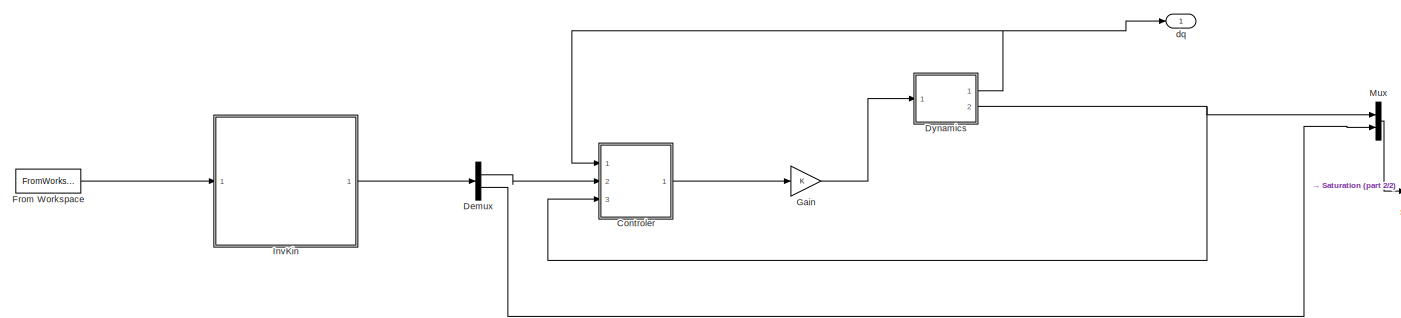
[diagram: root canvas - part 1/2, most of the canvas]
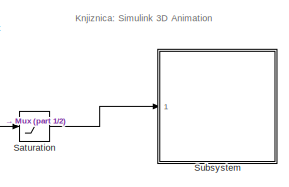
[diagram: root canvas - part 2/2, middle right region]
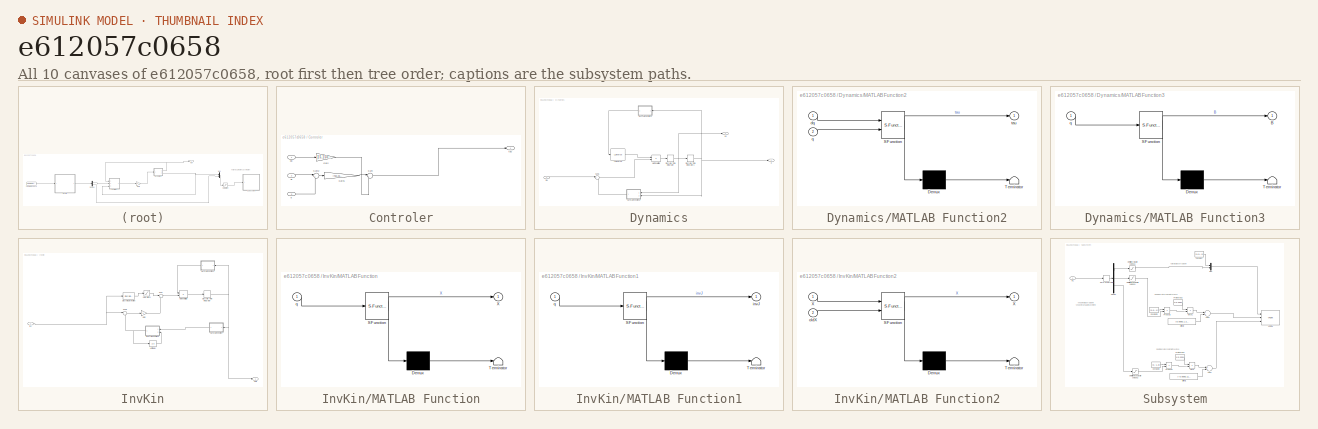
[diagram: thumbnail index - all 10 canvases of the model, root first then tree order]
MODEL slx_e612057c0658
KIND model
CONFIG AbsTol = auto
CONFIG EnableMultiTasking = on
CONFIG FixedStep = auto
CONFIG MaxStep = auto
CONFIG MinStep = auto
CONFIG RelTol = 1e-3
CONFIG SampleTimeConstraint = Unconstrained
CONFIG Solver = ode45
CONFIG SolverName = ode45
CONFIG StartTime = 0.0
CONFIG StopTime = 10.0
BLOCK [SubSystem] Controler
  Ports = [3, 1]
  RequestExecContextInheritance = off
BLOCK [Gain] Controler/Gain
  Gain = [15,150,30]
  OutDataTypeStr = Inherit: Inherit via internal rule
  ParamDataTypeStr = Inherit: Inherit via internal rule
  SaturateOnIntegerOverflow = off
BLOCK [Gain] Controler/Gain1
  Gain = [450,25000,600]
  OutDataTypeStr = Inherit: Inherit via internal rule
  ParamDataTypeStr = Inherit: Inherit via internal rule
  SaturateOnIntegerOverflow = off
BLOCK [Sum] Controler/Sum
  IconShape = round
  InputSameDT = off
  Inputs = |+-
  OutDataTypeStr = Inherit: Inherit via internal rule
  Ports = [2, 1]
  SaturateOnIntegerOverflow = off
BLOCK [Sum] Controler/Sum2
  IconShape = round
  InputSameDT = off
  Inputs = |+-
  OutDataTypeStr = Inherit: Inherit via internal rule
  Ports = [2, 1]
  SaturateOnIntegerOverflow = off
BLOCK [Inport] Controler/dq
  IconDisplay = Port number
BLOCK [Inport] Controler/q
  IconDisplay = Port number
  Port = 3
BLOCK [Inport] Controler/qr
  IconDisplay = Port number
  Port = 2
BLOCK [Outport] Controler/tau
  IconDisplay = Port number
BLOCK [Demux] Demux
  DisplayOption = bar
  Outputs = 2
  Ports = [1, 2]
BLOCK [SubSystem] Dynamics
  Ports = [1, 2]
  RequestExecContextInheritance = off
BLOCK [Reference] Dynamics/ LU Inverse  REF=dspinverses/ LU Inverse
  Ports = [1, 1]
  SourceBlock = dspinverses/ LU Inverse
  SourceProductBaseCode = DS
  SourceProductName = DSP System Toolbox
  SourceType = LU Inverse
BLOCK [DiscreteIntegrator] Dynamics/Discrete-Time Integrator
  ICPrevOutput = DiscIntNeverNeededParam
  ICPrevScaledInput = DiscIntNeverNeededParam
  InitialCondition = [0 0 0]
  InitialConditionSetting = Auto
  Ports = [1, 1]
  SampleTime = dT
BLOCK [DiscreteIntegrator] Dynamics/Discrete-Time Integrator1
  ICPrevOutput = DiscIntNeverNeededParam
  ICPrevScaledInput = DiscIntNeverNeededParam
  InitialCondition = q0(1:3)
  InitialConditionSetting = Auto
  Ports = [1, 1]
  SampleTime = dT
BLOCK [SubSystem] Dynamics/MATLAB Function2
  ErrorFcn = Stateflow.Translate.translate
  PermitHierarchicalResolution = ExplicitOnly
  Ports = [2, 1]
  RequestExecContextInheritance = off
  SFBlockType = MATLAB Function
  TreatAsAtomicUnit = on
BLOCK [Demux] Dynamics/MATLAB Function2/ Demux 
  Outputs = 1
  Ports = [1, 1]
BLOCK [S-Function] Dynamics/MATLAB Function2/ SFunction 
  EnableBusSupport = on
  FunctionName = sf_sfun
  PortCounts = [2 2]
  Ports = [2, 2]
  SFcnIsStateOwnerBlock = off
  SFunctionDeploymentMode = off
  Tag = Stateflow S-Function 2
BLOCK [Terminator] Dynamics/MATLAB Function2/ Terminator 
BLOCK [Inport] Dynamics/MATLAB Function2/dq
  IconDisplay = Port number
BLOCK [Inport] Dynamics/MATLAB Function2/q
  IconDisplay = Port number
  Port = 2
BLOCK [Outport] Dynamics/MATLAB Function2/tau
  IconDisplay = Port number
BLOCK [SubSystem] Dynamics/MATLAB Function3
  ErrorFcn = Stateflow.Translate.translate
  PermitHierarchicalResolution = ExplicitOnly
  Ports = [1, 1]
  RequestExecContextInheritance = off
  SFBlockType = MATLAB Function
  TreatAsAtomicUnit = on
BLOCK [Demux] Dynamics/MATLAB Function3/ Demux 
  Outputs = 1
  Ports = [1, 1]
BLOCK [S-Function] Dynamics/MATLAB Function3/ SFunction 
  EnableBusSupport = on
  FunctionName = sf_sfun
  PortCounts = [1 2]
  Ports = [1, 2]
  SFcnIsStateOwnerBlock = off
  SFunctionDeploymentMode = off
  Tag = Stateflow S-Function 3
BLOCK [Terminator] Dynamics/MATLAB Function3/ Terminator 
BLOCK [Outport] Dynamics/MATLAB Function3/B
  IconDisplay = Port number
BLOCK [Inport] Dynamics/MATLAB Function3/q
  IconDisplay = Port number
BLOCK [Product] Dynamics/Matrix Multiply
  InputSameDT = off
  Multiplication = Matrix(*)
  OutDataTypeStr = Inherit: Inherit via internal rule
  Ports = [2, 1]
  RndMeth = Floor
  SaturateOnIntegerOverflow = off
BLOCK [Sum] Dynamics/Sum1
  IconShape = round
  InputSameDT = off
  Inputs = |+-
  OutDataTypeStr = Inherit: Inherit via internal rule
  Ports = [2, 1]
  SaturateOnIntegerOverflow = off
BLOCK [Outport] Dynamics/dq
  IconDisplay = Port number
BLOCK [Outport] Dynamics/q
  IconDisplay = Port number
  Port = 2
BLOCK [Inport] Dynamics/tau
  IconDisplay = Port number
BLOCK [FromWorkspace] From Workspace
  SampleTime = 0
  VariableName = xTrajec
  ZeroCross = on
BLOCK [Gain] Gain
  OutDataTypeStr = Inherit: Inherit via internal rule
  ParamDataTypeStr = Inherit: Inherit via internal rule
  SaturateOnIntegerOverflow = off
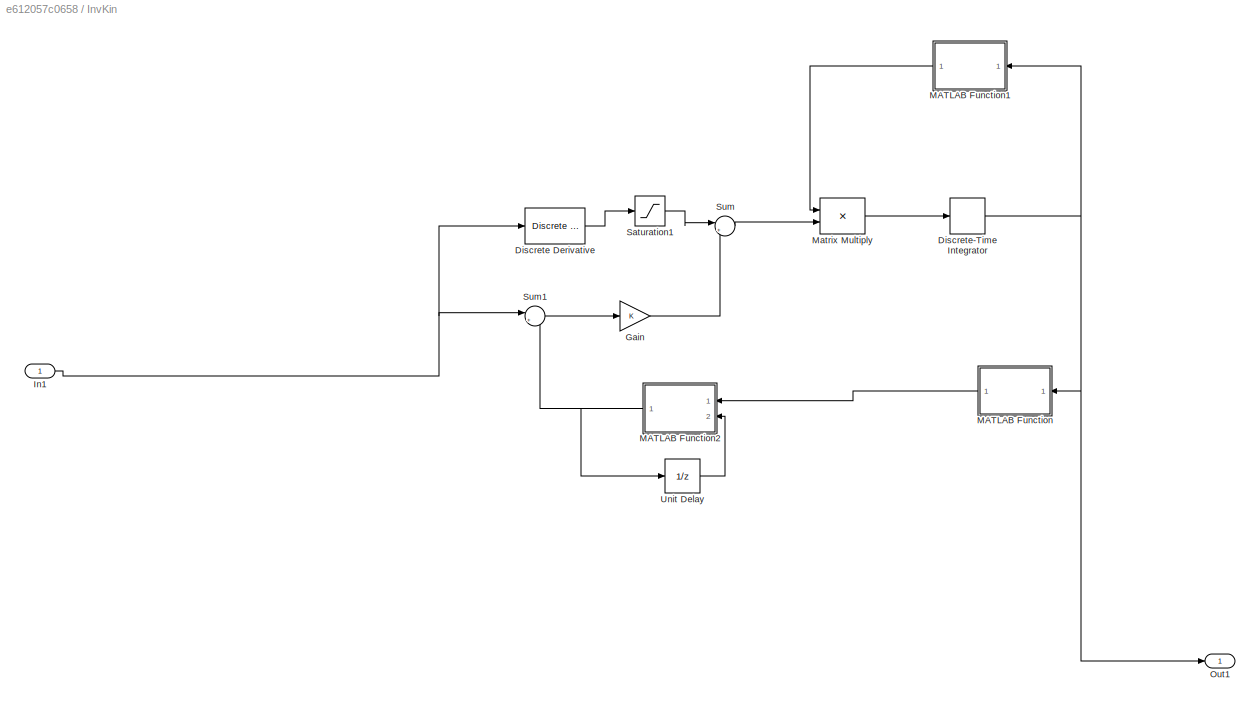
BLOCK [SubSystem] InvKin
  Ports = [1, 1]
  RequestExecContextInheritance = off
BLOCK [Reference] InvKin/Discrete Derivative  REF=simulink/Discrete/Discrete Derivative
  Ports = [1, 1]
  SourceBlock = simulink/Discrete/Discrete Derivative
  SourceProductBaseCode = SL
  SourceProductName = Simulink
  SourceType = Discrete Derivative
BLOCK [DiscreteIntegrator] InvKin/Discrete-Time Integrator
  ICPrevOutput = DiscIntNeverNeededParam
  ICPrevScaledInput = DiscIntNeverNeededParam
  InitialCondition = q0
  InitialConditionSetting = Auto
  Ports = [1, 1]
  SampleTime = dT
BLOCK [Gain] InvKin/Gain
  OutDataTypeStr = Inherit: Inherit via internal rule
  ParamDataTypeStr = Inherit: Inherit via internal rule
  SaturateOnIntegerOverflow = off
BLOCK [Inport] InvKin/In1
  IconDisplay = Port number
BLOCK [SubSystem] InvKin/MATLAB Function
  ErrorFcn = Stateflow.Translate.translate
  PermitHierarchicalResolution = ExplicitOnly
  Ports = [1, 1]
  RequestExecContextInheritance = off
  SFBlockType = MATLAB Function
  TreatAsAtomicUnit = on
BLOCK [Demux] InvKin/MATLAB Function/ Demux 
  Outputs = 1
  Ports = [1, 1]
BLOCK [S-Function] InvKin/MATLAB Function/ SFunction 
  EnableBusSupport = on
  FunctionName = sf_sfun
  PortCounts = [1 2]
  Ports = [1, 2]
  SFcnIsStateOwnerBlock = off
  SFunctionDeploymentMode = off
  Tag = Stateflow S-Function 8
BLOCK [Terminator] InvKin/MATLAB Function/ Terminator 
BLOCK [Outport] InvKin/MATLAB Function/X
  IconDisplay = Port number
BLOCK [Inport] InvKin/MATLAB Function/q
  IconDisplay = Port number
BLOCK [SubSystem] InvKin/MATLAB Function1
  ErrorFcn = Stateflow.Translate.translate
  PermitHierarchicalResolution = ExplicitOnly
  Ports = [1, 1]
  RequestExecContextInheritance = off
  SFBlockType = MATLAB Function
  TreatAsAtomicUnit = on
BLOCK [Demux] InvKin/MATLAB Function1/ Demux 
  Outputs = 1
  Ports = [1, 1]
BLOCK [S-Function] InvKin/MATLAB Function1/ SFunction 
  EnableBusSupport = on
  FunctionName = sf_sfun
  PortCounts = [1 2]
  Ports = [1, 2]
  SFcnIsStateOwnerBlock = off
  SFunctionDeploymentMode = off
  Tag = Stateflow S-Function 9
BLOCK [Terminator] InvKin/MATLAB Function1/ Terminator 
BLOCK [Outport] InvKin/MATLAB Function1/invJ
  IconDisplay = Port number
BLOCK [Inport] InvKin/MATLAB Function1/q
  IconDisplay = Port number
BLOCK [SubSystem] InvKin/MATLAB Function2
  ErrorFcn = Stateflow.Translate.translate
  PermitHierarchicalResolution = ExplicitOnly
  Ports = [2, 1]
  RequestExecContextInheritance = off
  SFBlockType = MATLAB Function
  TreatAsAtomicUnit = on
BLOCK [Demux] InvKin/MATLAB Function2/ Demux 
  Outputs = 1
  Ports = [1, 1]
BLOCK [S-Function] InvKin/MATLAB Function2/ SFunction 
  EnableBusSupport = on
  FunctionName = sf_sfun
  PortCounts = [2 2]
  Ports = [2, 2]
  SFcnIsStateOwnerBlock = off
  SFunctionDeploymentMode = off
  Tag = Stateflow S-Function 10
BLOCK [Terminator] InvKin/MATLAB Function2/ Terminator 
BLOCK [Outport] InvKin/MATLAB Function2/X
  IconDisplay = Port number
BLOCK [Inport] InvKin/MATLAB Function2/X 
  IconDisplay = Port number
BLOCK [Inport] InvKin/MATLAB Function2/oldX
  IconDisplay = Port number
  Port = 2
BLOCK [Product] InvKin/Matrix Multiply
  InputSameDT = off
  Multiplication = Matrix(*)
  OutDataTypeStr = Inherit: Inherit via internal rule
  Ports = [2, 1]
  RndMeth = Floor
  SaturateOnIntegerOverflow = off
BLOCK [Outport] InvKin/Out1
  IconDisplay = Port number
BLOCK [Saturate] InvKin/Saturation1
  InputPortMap = u0
  Ports = [1, 1]
BLOCK [Sum] InvKin/Sum
  IconShape = round
  InputSameDT = off
  Inputs = |++
  OutDataTypeStr = Inherit: Inherit via internal rule
  Ports = [2, 1]
  SaturateOnIntegerOverflow = off
BLOCK [Sum] InvKin/Sum1
  IconShape = round
  InputSameDT = off
  Inputs = |+-
  OutDataTypeStr = Inherit: Inherit via internal rule
  Ports = [2, 1]
  SaturateOnIntegerOverflow = off
BLOCK [UnitDelay] InvKin/Unit Delay
  HasFrameUpgradeWarning = on
  InitialCondition = q2ZYXeul(q0)
  SampleTime = -1
BLOCK [Mux] Mux
  DisplayOption = bar
  Inputs = 2
  Ports = [2, 1]
BLOCK [Saturate] Saturation
  InputPortMap = u0
  Ports = [1, 1]
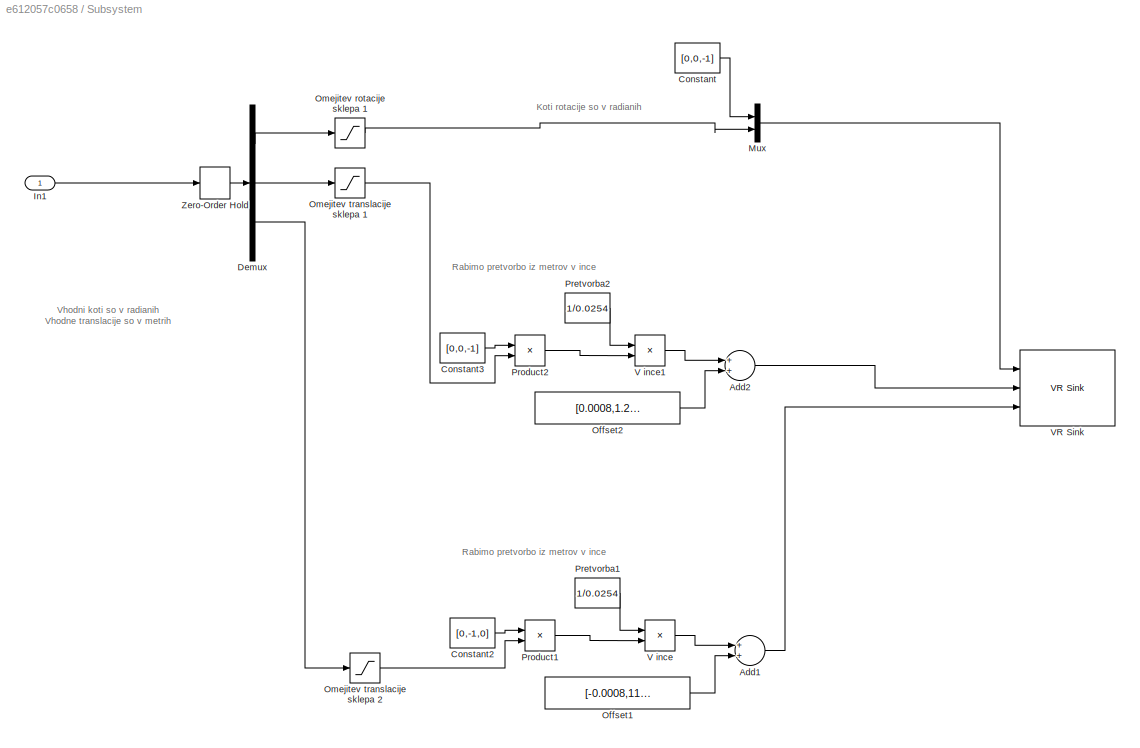
BLOCK [SubSystem] Subsystem
  Commented = on
  Ports = [1]
  RequestExecContextInheritance = off
BLOCK [Sum] Subsystem/Add1
  InputSameDT = off
  OutDataTypeStr = Inherit: Inherit via internal rule
  Ports = [2, 1]
  SaturateOnIntegerOverflow = off
BLOCK [Sum] Subsystem/Add2
  InputSameDT = off
  OutDataTypeStr = Inherit: Inherit via internal rule
  Ports = [2, 1]
  SaturateOnIntegerOverflow = off
BLOCK [Constant] Subsystem/Constant
  SampleTime = -1
  Value = [0,0,-1]
BLOCK [Constant] Subsystem/Constant2
  SampleTime = -1
  Value = [0,-1,0]
BLOCK [Constant] Subsystem/Constant3
  SampleTime = -1
  Value = [0,0,-1]
BLOCK [Demux] Subsystem/Demux
  DisplayOption = bar
  Outputs = 3
  Ports = [1, 3]
BLOCK [Inport] Subsystem/In1
  IconDisplay = Port number
BLOCK [Mux] Subsystem/Mux
  DisplayOption = bar
  Inputs = 2
  Ports = [2, 1]
BLOCK [Constant] Subsystem/Offset1
  SampleTime = -1
  Value = [-0.0008,11.21247,-0.7874]
BLOCK [Constant] Subsystem/Offset2
  SampleTime = -1
  Value = [0.0008,1.2763,-10.907]
BLOCK [Saturate] Subsystem/Omejitev rotacije sklepa 1
  InputPortMap = u0
  LowerLimit = -30
  Ports = [1, 1]
  UpperLimit = 30
BLOCK [Saturate] Subsystem/Omejitev translacije sklepa 1
  InputPortMap = u0
  LowerLimit = -0.45729/2
  Ports = [1, 1]
  UpperLimit = 0.45729/2
BLOCK [Saturate] Subsystem/Omejitev translacije sklepa 2
  InputPortMap = u0
  LowerLimit = -0.3797/2
  Ports = [1, 1]
  UpperLimit = 0.3797/2
BLOCK [Constant] Subsystem/Pretvorba1
  SampleTime = -1
  Value = 1/0.0254
BLOCK [Constant] Subsystem/Pretvorba2
  SampleTime = -1
  Value = 1/0.0254
BLOCK [Product] Subsystem/Product1
  InputSameDT = off
  OutDataTypeStr = Inherit: Inherit via internal rule
  Ports = [2, 1]
  SaturateOnIntegerOverflow = off
BLOCK [Product] Subsystem/Product2
  InputSameDT = off
  OutDataTypeStr = Inherit: Inherit via internal rule
  Ports = [2, 1]
  SaturateOnIntegerOverflow = off
BLOCK [Product] Subsystem/V ince
  InputSameDT = off
  OutDataTypeStr = Inherit: Inherit via internal rule
  Ports = [2, 1]
  SaturateOnIntegerOverflow = off
BLOCK [Product] Subsystem/V ince1
  InputSameDT = off
  OutDataTypeStr = Inherit: Inherit via internal rule
  Ports = [2, 1]
  SaturateOnIntegerOverflow = off
BLOCK [Reference] Subsystem/VR Sink  REF=vrlib/VR Sink
  InstantiateOnLoad = on
  Ports = [3]
  SourceBlock = vrlib/VR Sink
  SourceProductBaseCode = SL
  SourceProductName = Simulink
  SourceType = Virtual Reality Sink
BLOCK [ZeroOrderHold] Subsystem/Zero-Order Hold
  SampleTime = 0.05
BLOCK [Outport] dq
  IconDisplay = Port number
ANNOTATION (root): Knjiznica: Simulink 3D Animation
ANNOTATION Subsystem: Koti rotacije so v radianih
ANNOTATION Subsystem: Rabimo pretvorbo iz metrov v ince
ANNOTATION Subsystem: Vhodni koti so v radianih Vhodne translacije so v metrih
LINE Controler/Gain1:1 -> Controler/Sum:1
LINE Controler/Gain:1 -> Controler/Sum:2
LINE Controler/Sum2:1 -> Controler/Gain1:1
LINE Controler/Sum:1 -> Controler/tau:1
LINE Controler/dq:1 -> Controler/Gain:1
LINE Controler/q:1 -> Controler/Sum2:2
LINE Controler/qr:1 -> Controler/Sum2:1
LINE Controler:1 -> Gain:1
LINE Demux:1 -> Controler:2
LINE Demux:2 -> Mux:2
LINE Dynamics/ LU Inverse:1 -> Dynamics/Matrix Multiply:1
NET Dynamics/Discrete-Time Integrator1:1 -> Dynamics/MATLAB Function2:2, Dynamics/MATLAB Function3:1, Dynamics/q:1
NET Dynamics/Discrete-Time Integrator:1 -> Dynamics/Discrete-Time Integrator1:1, Dynamics/MATLAB Function2:1, Dynamics/dq:1
LINE Dynamics/MATLAB Function2:1 -> Dynamics/Sum1:2
LINE Dynamics/MATLAB Function3:1 -> Dynamics/ LU Inverse:1
LINE Dynamics/Matrix Multiply:1 -> Dynamics/Discrete-Time Integrator:1
LINE Dynamics/Sum1:1 -> Dynamics/Matrix Multiply:2
LINE Dynamics/tau:1 -> Dynamics/Sum1:1
NET Dynamics:1 -> Controler:1, dq:1
NET Dynamics:2 -> Controler:3, Mux:1
LINE From Workspace:1 -> InvKin:1
LINE Gain:1 -> Dynamics:1
LINE InvKin/Discrete Derivative:1 -> InvKin/Saturation1:1
NET InvKin/Discrete-Time Integrator:1 -> InvKin/MATLAB Function1:1, InvKin/MATLAB Function:1, InvKin/Out1:1
LINE InvKin/Gain:1 -> InvKin/Sum:2
NET InvKin/In1:1 -> InvKin/Discrete Derivative:1, InvKin/Sum1:1
LINE InvKin/MATLAB Function1:1 -> InvKin/Matrix Multiply:1
NET InvKin/MATLAB Function2:1 -> InvKin/Sum1:2, InvKin/Unit Delay:1
LINE InvKin/MATLAB Function:1 -> InvKin/MATLAB Function2:1
LINE InvKin/Matrix Multiply:1 -> InvKin/Discrete-Time Integrator:1
LINE InvKin/Saturation1:1 -> InvKin/Sum:1
LINE InvKin/Sum1:1 -> InvKin/Gain:1
LINE InvKin/Sum:1 -> InvKin/Matrix Multiply:2
LINE InvKin/Unit Delay:1 -> InvKin/MATLAB Function2:2
LINE InvKin:1 -> Demux:1
LINE Mux:1 -> Saturation:1
LINE Saturation:1 -> Subsystem:1
LINE Subsystem/Add1:1 -> Subsystem/VR Sink:3
LINE Subsystem/Add2:1 -> Subsystem/VR Sink:2
LINE Subsystem/Constant2:1 -> Subsystem/Product1:1
LINE Subsystem/Constant3:1 -> Subsystem/Product2:1
LINE Subsystem/Constant:1 -> Subsystem/Mux:1
LINE Subsystem/Demux:1 -> Subsystem/Omejitev rotacije sklepa 1:1
LINE Subsystem/Demux:2 -> Subsystem/Omejitev translacije sklepa 1:1
LINE Subsystem/Demux:3 -> Subsystem/Omejitev translacije sklepa 2:1
LINE Subsystem/In1:1 -> Subsystem/Zero-Order Hold:1
LINE Subsystem/Mux:1 -> Subsystem/VR Sink:1
LINE Subsystem/Offset1:1 -> Subsystem/Add1:2
LINE Subsystem/Offset2:1 -> Subsystem/Add2:2
LINE Subsystem/Omejitev rotacije sklepa 1:1 -> Subsystem/Mux:2
LINE Subsystem/Omejitev translacije sklepa 1:1 -> Subsystem/Product2:2
LINE Subsystem/Omejitev translacije sklepa 2:1 -> Subsystem/Product1:2
LINE Subsystem/Pretvorba1:1 -> Subsystem/V ince:1
LINE Subsystem/Pretvorba2:1 -> Subsystem/V ince1:1
LINE Subsystem/Product1:1 -> Subsystem/V ince:2
LINE Subsystem/Product2:1 -> Subsystem/V ince1:2
LINE Subsystem/V ince1:1 -> Subsystem/Add2:1
LINE Subsystem/V ince:1 -> Subsystem/Add1:1
LINE Subsystem/Zero-Order Hold:1 -> Subsystem/Demux:1
note: NET lines group one-source signal fan-out (src -> all destinations, sorted); 1:1 wires keep LINE
CHART Dynamics/MATLAB Function2 states=1 transitions=1
  STATE_LABEL 'eML_blk_kernel()'
  STATE_LABEL "SCRIPT:\nfunction tau = tau3_q_dq(dq, q)\n\n    % Funkcija izracuna navore v sklepih robota, ki so posledica delovanja \n    % Coriolisovih in gravitacijskih komponent ter posledica trenja.\n    % Vhodni vektorji so polozaji v sklepih q in sklepne hitrosti dq.\n    % Izhod funkcije je vektor sklepnih navorov tau.\n\n    % Upostevamo pogoj za pospesek, ki deluje na bazo robota.\n        ddp0 = [0 0 9.81]'; ...<+434ch>"
CHART Dynamics/MATLAB Function3 states=1 transitions=1
  STATE_LABEL 'eML_blk_kernel()'
  STATE_LABEL "SCRIPT:\nfunction B = inertia3(q)\n\n    % Funkcija izracuna vztrajnostno matriko za robot s tremi segmenti.\n    % Vhod je vektor kotov v sklepih q.\n\n    % Inicializacijs vztrajnostne matrike.\n        B = zeros(3,3);\n\n    % Upostevamo pogoj za pospesek, ki deluje na bazo robota.\n        ddp0 = [0 0 0]';                                            %%% STUDENT %%%\n\n    % Upostevamo pogoj za kotne pospes...<+1000ch>"
CHART InvKin/MATLAB Function states=1 transitions=1
  STATE_LABEL 'eML_blk_kernel()'
  STATE_LABEL 'SCRIPT:\nfunction X  = q2ZYXeul(q)\n\n% q - Vektor kotnih spremenljivk robota (vhod).\n% x - Lega vrha robota XYZ in orientacija z ZYX Eulerjevimi koti (izhod).\n\n% Matrika lege vrha robota.\nT6 = dirkinT6(dirkinA(q)); %%% STUDENT %%%\n\n% Izluscimo ustrezne komponente rotacijske matrike.\nr21 = T6(2, 1); %(vrstica, stolpec)\nr31 = T6(3, 1); %%% STUDENT %%%\nr32 = T6(3, 2); %%% STUDENT %%%\nr33 = T6(3, 3); %%...<+482ch>'
CHART InvKin/MATLAB Function1 states=1 transitions=1
  STATE_LABEL 'eML_blk_kernel()'
  STATE_LABEL 'SCRIPT:\nfunction invJ  = ijacZYXeul(q)\n\n% q - Vrednost kotov v sklepih robota (vhod).\n% invJ - Inverzna analiticna Jacobijeva matrika, kjer je orientacija\n% predstavljena z ZYX Eulerjevimi koti (izhod).\n\n% Izracun geometrijske Jacobijeve matrike (Jg).\nJg = jacobi0(q); %%% STUDENT %%%\n\n% Izracun lege vrha robota z ZYX Eulerjevimi koti za opis orientacije.\nX = q2ZYXeul(q); %%% STUDENT %%%\n\n% Iz vekt...<+536ch>'
CHART InvKin/MATLAB Function2 states=1 transitions=1
  STATE_LABEL 'eML_blk_kernel()'
  STATE_LABEL 'SCRIPT:\nfunction X = skoki(X,oldX)\n\nfor i = 4:6\n    if abs(X(i)-oldX(i)) >= pi\n        X(i)=X(i)-sign(X(i)-oldX(i))*2*pi;\n    end\nend\n\n        \n\n\n\n%q = X1;\n%if abs(q - oldX) >= pi\n%    X = q - sign(q - oldX)*2*pi;\n\n%else\n%    X = q;\n\n%end\n'
